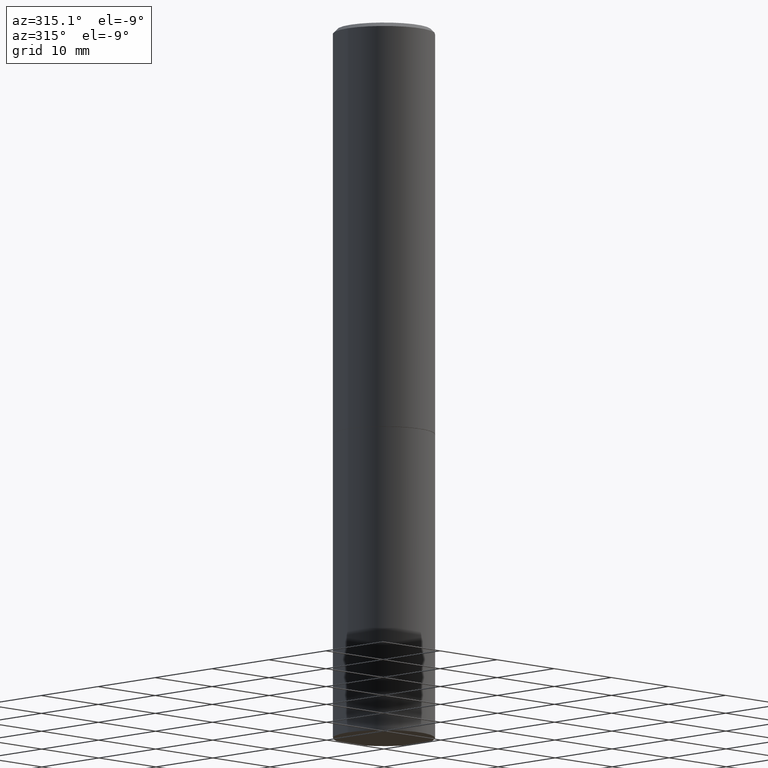
[diagram: clean part render]
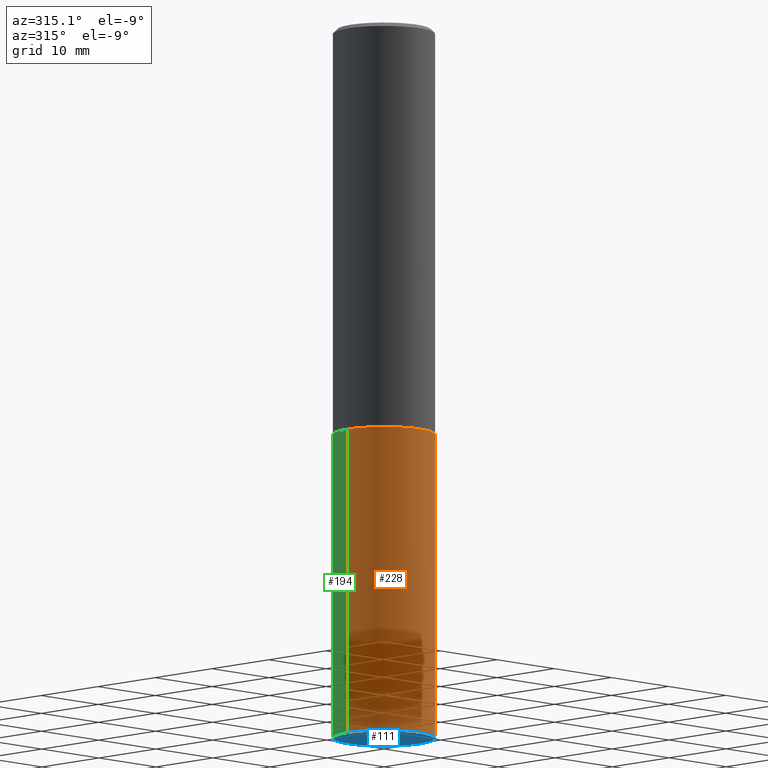
[diagram: same view with three faces highlighted in distinct colors, each labeled with its STEP entity id]
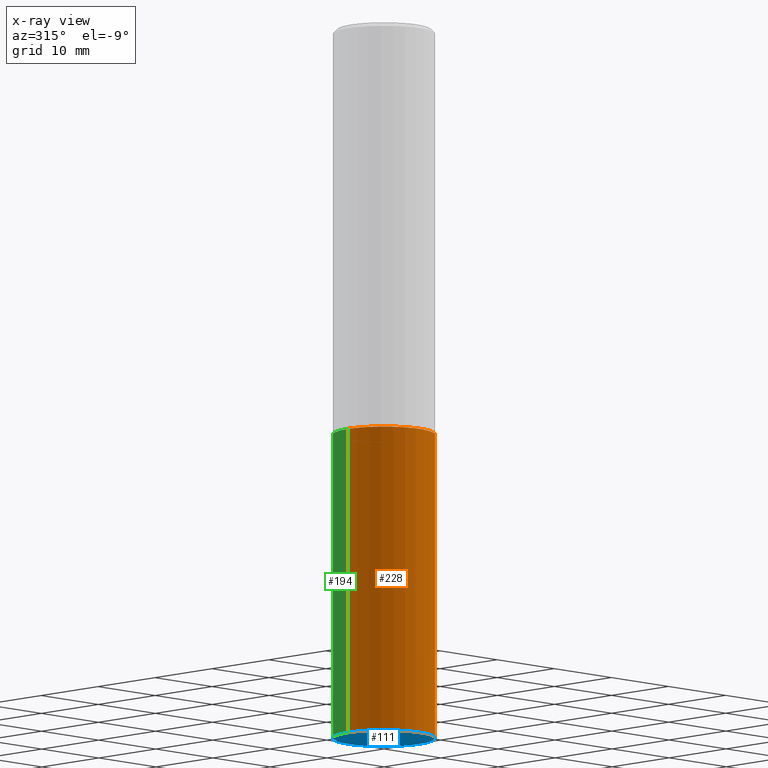
[diagram: x-ray of the same camera — body ghosted, the three highlighted faces saturated]
A machine part, auxiliary view with three faces highlighted in distinct colors.
The next image is the same camera in x-ray (body ghosted, the three faces saturated) — at least one of them is partly hidden behind the body in this view.
Their STEP definitions:

[orange] entity #228 — the highlighted cylindrical surface (partial cylindrical patch) has radius 6.35 mm, axis along (-0, 0, 1).
#17 = AXIS2_PLACEMENT_3D ( 'NONE', #243, #332, #71 ) ;
#19 = ORIENTED_EDGE ( 'NONE', *, *, #199, .F. ) ;
#23 = ORIENTED_EDGE ( 'NONE', *, *, #289, .T. ) ;
#40 = ORIENTED_EDGE ( 'NONE', *, *, #287, .T. ) ;
#42 = VERTEX_POINT ( 'NONE', #48 ) ;
#46 = CYLINDRICAL_SURFACE ( 'NONE', #252, 0.2500000000000000000 ) ;
#48 = CARTESIAN_POINT ( 'NONE',  ( -0.2500000000000000000, -7.825216842418399394E-15, -3.500000000000000000 ) ) ;
#71 = DIRECTION ( 'NONE',  ( 1.000000000000000000, -6.982962677686270655E-15, 0.000000000000000000 ) ) ;
#89 = LINE ( 'NONE', #322, #198 ) ;
#104 = EDGE_CURVE ( 'NONE', #42, #260, #89, .T. ) ;
#108 = VECTOR ( 'NONE', #279, 39.37007874015748143 ) ;
#120 = EDGE_LOOP ( 'NONE', ( #147, #40, #23, #19 ) ) ;
#122 = CARTESIAN_POINT ( 'NONE',  ( 0.2500000000000000000, -1.396592535537257602E-14, -3.500000000000000000 ) ) ;
#127 = CARTESIAN_POINT ( 'NONE',  ( 4.890937612370273194E-29, -6.982962677686291165E-15, -2.000000000000000000 ) ) ;
#128 = VERTEX_POINT ( 'NONE', #122 ) ;
#135 = DIRECTION ( 'NONE',  ( 1.000000000000000000, -6.982962677686266711E-15, 0.000000000000000000 ) ) ;
#137 = CARTESIAN_POINT ( 'NONE',  ( 0.2500000000000000000, -8.728703347107857054E-15, -2.000000000000000000 ) ) ;
#147 = ORIENTED_EDGE ( 'NONE', *, *, #104, .F. ) ;
#160 = DIRECTION ( 'NONE',  ( 1.000000000000000000, -6.982962677686266711E-15, 4.876176775795935793E-29 ) ) ;
#163 = CARTESIAN_POINT ( 'NONE',  ( 0.2500000000000000000, -1.745740669421566678E-15, 1.219044193948983948E-29 ) ) ;
#182 = CARTESIAN_POINT ( 'NONE',  ( -0.2500000000000000000, -7.825216842418399394E-15, -2.000000000000000000 ) ) ;
#188 = LINE ( 'NONE', #163, #108 ) ;
#191 = DIRECTION ( 'NONE',  ( -2.445468806185136597E-29, 3.491481338843145583E-15, 1.000000000000000000 ) ) ;
#192 = CIRCLE ( 'NONE', #227, 0.2500000000000000000 ) ;
#198 = VECTOR ( 'NONE', #263, 39.37007874015748143 ) ;
#199 = EDGE_CURVE ( 'NONE', #260, #204, #192, .T. ) ;
#204 = VERTEX_POINT ( 'NONE', #137 ) ;
#222 = FACE_OUTER_BOUND ( 'NONE', #120, .T. ) ;
#227 = AXIS2_PLACEMENT_3D ( 'NONE', #127, #272, #135 ) ;
#228 = ADVANCED_FACE ( 'NONE', ( #222 ), #46, .T. ) ;
#243 = CARTESIAN_POINT ( 'NONE',  ( 8.559140821647976968E-29, -1.222018468595100934E-14, -3.500000000000000000 ) ) ;
#252 = AXIS2_PLACEMENT_3D ( 'NONE', #362, #191, #160 ) ;
#260 = VERTEX_POINT ( 'NONE', #182 ) ;
#263 = DIRECTION ( 'NONE',  ( -2.445468806185136877E-29, 3.491481338843145188E-15, 1.000000000000000000 ) ) ;
#272 = DIRECTION ( 'NONE',  ( -2.445468806185136597E-29, 3.491481338843145583E-15, 1.000000000000000000 ) ) ;
#273 = CIRCLE ( 'NONE', #17, 0.2500000000000000000 ) ;
#279 = DIRECTION ( 'NONE',  ( -2.445468806185136877E-29, 3.491481338843145188E-15, 1.000000000000000000 ) ) ;
#287 = EDGE_CURVE ( 'NONE', #42, #128, #273, .T. ) ;
#289 = EDGE_CURVE ( 'NONE', #128, #204, #188, .T. ) ;
#322 = CARTESIAN_POINT ( 'NONE',  ( -0.2500000000000000000, 1.776356839400250465E-15, -1.229733772563726445E-29 ) ) ;
#332 = DIRECTION ( 'NONE',  ( -2.445468806185136597E-29, 3.491481338843145583E-15, 1.000000000000000000 ) ) ;
#362 = CARTESIAN_POINT ( 'NONE',  ( 0.000000000000000000, 0.000000000000000000, 0.000000000000000000 ) ) ;

[blue] entity #111 — the highlighted planar face has unit normal (0, -0, -1).
#17 = AXIS2_PLACEMENT_3D ( 'NONE', #243, #332, #71 ) ;
#42 = VERTEX_POINT ( 'NONE', #48 ) ;
#48 = CARTESIAN_POINT ( 'NONE',  ( -0.2500000000000000000, -7.825216842418399394E-15, -3.500000000000000000 ) ) ;
#60 = CARTESIAN_POINT ( 'NONE',  ( 1.745740669421652072E-15, 0.2499999999999877598, -3.500000000000000888 ) ) ;
#71 = DIRECTION ( 'NONE',  ( 1.000000000000000000, -6.982962677686270655E-15, 0.000000000000000000 ) ) ;
#79 = PLANE ( 'NONE',  #80 ) ;
#80 = AXIS2_PLACEMENT_3D ( 'NONE', #60, #178, #291 ) ;
#97 = DIRECTION ( 'NONE',  ( -2.445468806185136597E-29, 3.491481338843145583E-15, 1.000000000000000000 ) ) ;
#111 = ADVANCED_FACE ( 'NONE', ( #320 ), #79, .T. ) ;
#122 = CARTESIAN_POINT ( 'NONE',  ( 0.2500000000000000000, -1.396592535537257602E-14, -3.500000000000000000 ) ) ;
#128 = VERTEX_POINT ( 'NONE', #122 ) ;
#142 = CIRCLE ( 'NONE', #365, 0.2500000000000000000 ) ;
#178 = DIRECTION ( 'NONE',  ( 2.438088387897960049E-29, -3.491481338843145188E-15, -1.000000000000000000 ) ) ;
#201 = EDGE_LOOP ( 'NONE', ( #323, #232 ) ) ;
#232 = ORIENTED_EDGE ( 'NONE', *, *, #287, .F. ) ;
#239 = EDGE_CURVE ( 'NONE', #128, #42, #142, .T. ) ;
#243 = CARTESIAN_POINT ( 'NONE',  ( 8.559140821647976968E-29, -1.222018468595100934E-14, -3.500000000000000000 ) ) ;
#273 = CIRCLE ( 'NONE', #17, 0.2500000000000000000 ) ;
#287 = EDGE_CURVE ( 'NONE', #42, #128, #273, .T. ) ;
#291 = DIRECTION ( 'NONE',  ( -1.000000000000000000, 6.982962677686265922E-15, -4.876176775795935793E-29 ) ) ;
#306 = DIRECTION ( 'NONE',  ( 1.000000000000000000, -6.982962677686270655E-15, 0.000000000000000000 ) ) ;
#320 = FACE_OUTER_BOUND ( 'NONE', #201, .T. ) ;
#323 = ORIENTED_EDGE ( 'NONE', *, *, #239, .F. ) ;
#325 = CARTESIAN_POINT ( 'NONE',  ( 8.559140821647976968E-29, -1.222018468595100934E-14, -3.500000000000000000 ) ) ;
#332 = DIRECTION ( 'NONE',  ( -2.445468806185136597E-29, 3.491481338843145583E-15, 1.000000000000000000 ) ) ;
#365 = AXIS2_PLACEMENT_3D ( 'NONE', #325, #97, #306 ) ;

[green] entity #194 — the highlighted cylindrical surface (partial cylindrical patch) has radius 6.35 mm, axis along (-0, 0, 1).
#5 = AXIS2_PLACEMENT_3D ( 'NONE', #15, #161, #168 ) ;
#15 = CARTESIAN_POINT ( 'NONE',  ( 4.890937612370273194E-29, -6.982962677686291165E-15, -2.000000000000000000 ) ) ;
#18 = CYLINDRICAL_SURFACE ( 'NONE', #27, 0.2500000000000000000 ) ;
#27 = AXIS2_PLACEMENT_3D ( 'NONE', #212, #158, #246 ) ;
#42 = VERTEX_POINT ( 'NONE', #48 ) ;
#44 = FACE_OUTER_BOUND ( 'NONE', #148, .T. ) ;
#48 = CARTESIAN_POINT ( 'NONE',  ( -0.2500000000000000000, -7.825216842418399394E-15, -3.500000000000000000 ) ) ;
#51 = EDGE_CURVE ( 'NONE', #204, #260, #185, .T. ) ;
#81 = ORIENTED_EDGE ( 'NONE', *, *, #289, .F. ) ;
#89 = LINE ( 'NONE', #322, #198 ) ;
#97 = DIRECTION ( 'NONE',  ( -2.445468806185136597E-29, 3.491481338843145583E-15, 1.000000000000000000 ) ) ;
#104 = EDGE_CURVE ( 'NONE', #42, #260, #89, .T. ) ;
#108 = VECTOR ( 'NONE', #279, 39.37007874015748143 ) ;
#122 = CARTESIAN_POINT ( 'NONE',  ( 0.2500000000000000000, -1.396592535537257602E-14, -3.500000000000000000 ) ) ;
#128 = VERTEX_POINT ( 'NONE', #122 ) ;
#137 = CARTESIAN_POINT ( 'NONE',  ( 0.2500000000000000000, -8.728703347107857054E-15, -2.000000000000000000 ) ) ;
#142 = CIRCLE ( 'NONE', #365, 0.2500000000000000000 ) ;
#148 = EDGE_LOOP ( 'NONE', ( #316, #301, #256, #81 ) ) ;
#158 = DIRECTION ( 'NONE',  ( -2.445468806185136597E-29, 3.491481338843145583E-15, 1.000000000000000000 ) ) ;
#161 = DIRECTION ( 'NONE',  ( -2.445468806185136597E-29, 3.491481338843145583E-15, 1.000000000000000000 ) ) ;
#163 = CARTESIAN_POINT ( 'NONE',  ( 0.2500000000000000000, -1.745740669421566678E-15, 1.219044193948983948E-29 ) ) ;
#168 = DIRECTION ( 'NONE',  ( 1.000000000000000000, -6.982962677686266711E-15, 0.000000000000000000 ) ) ;
#182 = CARTESIAN_POINT ( 'NONE',  ( -0.2500000000000000000, -7.825216842418399394E-15, -2.000000000000000000 ) ) ;
#185 = CIRCLE ( 'NONE', #5, 0.2500000000000000000 ) ;
#188 = LINE ( 'NONE', #163, #108 ) ;
#194 = ADVANCED_FACE ( 'NONE', ( #44 ), #18, .T. ) ;
#198 = VECTOR ( 'NONE', #263, 39.37007874015748143 ) ;
#204 = VERTEX_POINT ( 'NONE', #137 ) ;
#212 = CARTESIAN_POINT ( 'NONE',  ( 0.000000000000000000, 0.000000000000000000, 0.000000000000000000 ) ) ;
#239 = EDGE_CURVE ( 'NONE', #128, #42, #142, .T. ) ;
#246 = DIRECTION ( 'NONE',  ( 1.000000000000000000, -6.982962677686266711E-15, 4.876176775795935793E-29 ) ) ;
#256 = ORIENTED_EDGE ( 'NONE', *, *, #51, .F. ) ;
#260 = VERTEX_POINT ( 'NONE', #182 ) ;
#263 = DIRECTION ( 'NONE',  ( -2.445468806185136877E-29, 3.491481338843145188E-15, 1.000000000000000000 ) ) ;
#279 = DIRECTION ( 'NONE',  ( -2.445468806185136877E-29, 3.491481338843145188E-15, 1.000000000000000000 ) ) ;
#289 = EDGE_CURVE ( 'NONE', #128, #204, #188, .T. ) ;
#301 = ORIENTED_EDGE ( 'NONE', *, *, #104, .T. ) ;
#306 = DIRECTION ( 'NONE',  ( 1.000000000000000000, -6.982962677686270655E-15, 0.000000000000000000 ) ) ;
#316 = ORIENTED_EDGE ( 'NONE', *, *, #239, .T. ) ;
#322 = CARTESIAN_POINT ( 'NONE',  ( -0.2500000000000000000, 1.776356839400250465E-15, -1.229733772563726445E-29 ) ) ;
#325 = CARTESIAN_POINT ( 'NONE',  ( 8.559140821647976968E-29, -1.222018468595100934E-14, -3.500000000000000000 ) ) ;
#365 = AXIS2_PLACEMENT_3D ( 'NONE', #325, #97, #306 ) ;